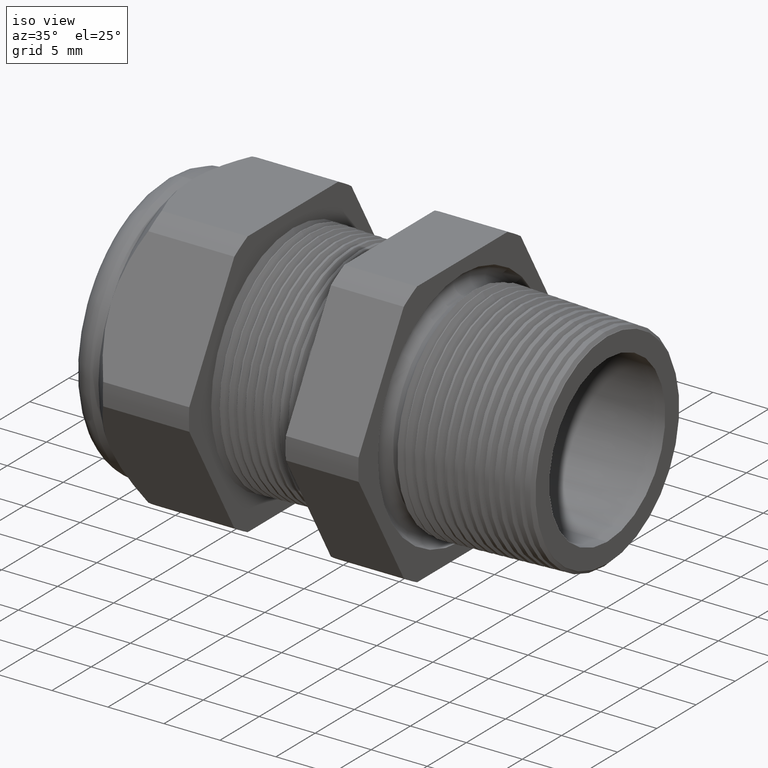
[diagram: clean part render]
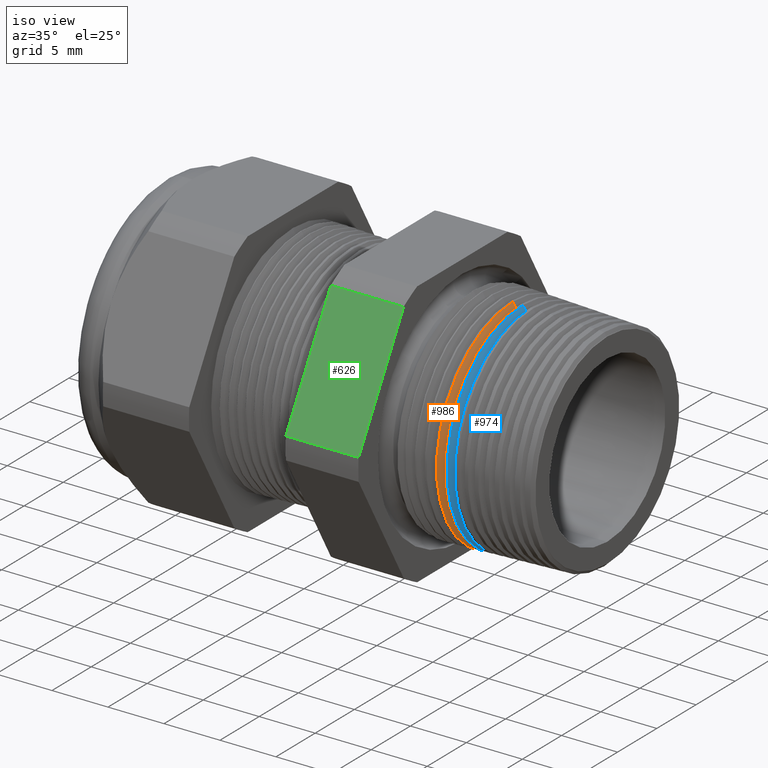
[diagram: same view with three faces highlighted in distinct colors, each labeled with its STEP entity id]
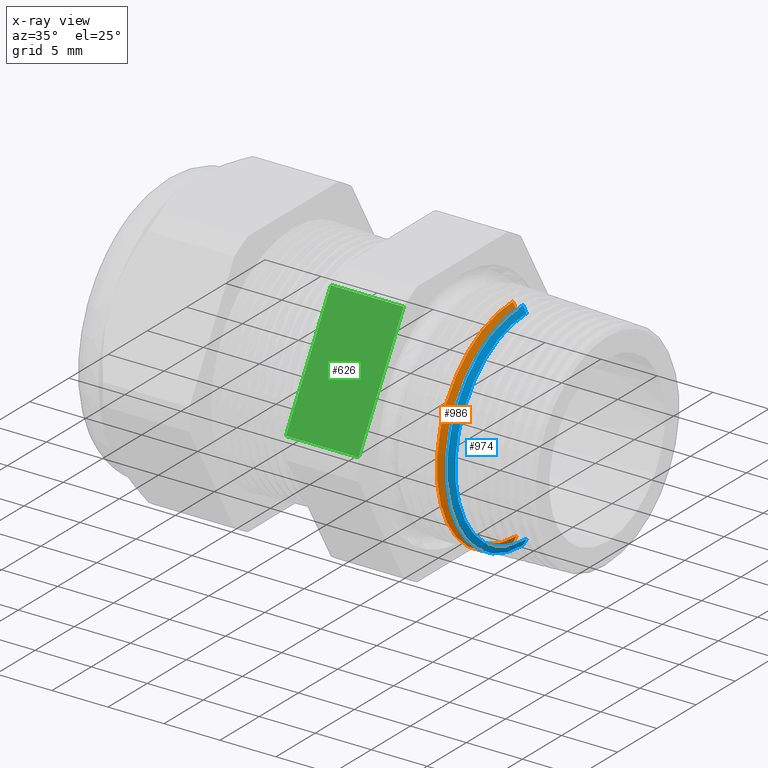
[diagram: x-ray of the same camera — body ghosted, the three highlighted faces saturated]
A machine part, iso view with three faces highlighted in distinct colors.
The next image is the same camera in x-ray (body ghosted, the three faces saturated) — at least one of them is partly hidden behind the body in this view.
Their STEP definitions:

[orange] entity #986 — the highlighted conical surface has half-angle 62 deg.
#986 = ADVANCED_FACE ( 'NONE', ( #3360 ), #3355, .T. ) ;
#987 = EDGE_LOOP ( 'NONE', ( #988, #989, #991, #992 ) ) ;
#988 = ORIENTED_EDGE ( 'NONE', *, *, #1150, .F. ) ;
#989 = ORIENTED_EDGE ( 'NONE', *, *, #990, .F. ) ;
#990 = EDGE_CURVE ( 'NONE', #1139, #1138, #3416, .T. ) ;
#991 = ORIENTED_EDGE ( 'NONE', *, *, #1126, .T. ) ;
#992 = ORIENTED_EDGE ( 'NONE', *, *, #5461, .T. ) ;
#1126 = EDGE_CURVE ( 'NONE', #1139, #1134, #3557, .T. ) ;
#1134 = VERTEX_POINT ( 'NONE', #3596 ) ;
#1138 = VERTEX_POINT ( 'NONE', #3595 ) ;
#1139 = VERTEX_POINT ( 'NONE', #3594 ) ;
#1150 = EDGE_CURVE ( 'NONE', #1138, #1151, #3636, .T. ) ;
#1151 = VERTEX_POINT ( 'NONE', #3632 ) ;
#3351 = DIRECTION ( 'NONE',  ( 0.0000000000000000000, 0.0000000000000000000, 1.000000000000000000 ) ) ;
#3352 = DIRECTION ( 'NONE',  ( -1.000000000000000000, 0.0000000000000000000, 0.0000000000000000000 ) ) ;
#3353 = CARTESIAN_POINT ( 'NONE',  ( -0.1349999999999999500, 0.0000000000000000000, 0.0000000000000000000 ) ) ;
#3354 = AXIS2_PLACEMENT_3D ( 'NONE', #3353, #3352, #3351 ) ;
#3355 = CONICAL_SURFACE ( 'NONE', #3354, 0.3892070189845242000, 1.082104136236471400 ) ;
#3360 = FACE_OUTER_BOUND ( 'NONE', #987, .T. ) ;
#3412 = DIRECTION ( 'NONE',  ( 0.0000000000000000000, 0.0000000000000000000, -1.000000000000000000 ) ) ;
#3413 = DIRECTION ( 'NONE',  ( 1.000000000000000000, 0.0000000000000000000, 0.0000000000000000000 ) ) ;
#3414 = CARTESIAN_POINT ( 'NONE',  ( -0.1187370280109210400, 0.0000000000000000000, 0.0000000000000000000 ) ) ;
#3415 = AXIS2_PLACEMENT_3D ( 'NONE', #3414, #3413, #3412 ) ;
#3416 = CIRCLE ( 'NONE', #3415, 0.3586208171594783600 ) ;
#3554 = DIRECTION ( 'NONE',  ( -0.4694715627859021900, 0.0000000000000000000, 0.8829475928589208800 ) ) ;
#3555 = VECTOR ( 'NONE', #3554, 39.37007874015748100 ) ;
#3556 = CARTESIAN_POINT ( 'NONE',  ( -0.1349999999999999500, 0.0000000000000000000, 0.3892070189845242000 ) ) ;
#3557 = LINE ( 'NONE', #3556, #3555 ) ;
#3594 = CARTESIAN_POINT ( 'NONE',  ( -0.1187370280109210400, 0.0000000000000000000, 0.3586208171594783600 ) ) ;
#3595 = CARTESIAN_POINT ( 'NONE',  ( -0.1187370280109210400, 4.540996975073094300E-017, -0.3586208171594783600 ) ) ;
#3596 = CARTESIAN_POINT ( 'NONE',  ( -0.1316891776990506100, 0.0000000000000000000, 0.3829802678610701400 ) ) ;
#3632 = CARTESIAN_POINT ( 'NONE',  ( -0.1316891776990506100, 4.691584091205684800E-017, -0.3829802678610701400 ) ) ;
#3633 = DIRECTION ( 'NONE',  ( -0.4694715627859021900, 1.081298943409537900E-016, -0.8829475928589208800 ) ) ;
#3634 = VECTOR ( 'NONE', #3633, 39.37007874015748100 ) ;
#3635 = CARTESIAN_POINT ( 'NONE',  ( -0.1349999999999999500, 4.766411300050807300E-017, -0.3892070189845242000 ) ) ;
#3636 = LINE ( 'NONE', #3635, #3634 ) ;
#4946 = DIRECTION ( 'NONE',  ( 0.0000000000000000000, 0.0000000000000000000, 1.000000000000000000 ) ) ;
#4947 = DIRECTION ( 'NONE',  ( 1.000000000000000000, 0.0000000000000000000, 0.0000000000000000000 ) ) ;
#4948 = CARTESIAN_POINT ( 'NONE',  ( -0.1316891776990506100, 0.0000000000000000000, 0.0000000000000000000 ) ) ;
#4949 = AXIS2_PLACEMENT_3D ( 'NONE', #4948, #4947, #4946 ) ;
#4950 = CIRCLE ( 'NONE', #4949, 0.3829802678610701400 ) ;
#5461 = EDGE_CURVE ( 'NONE', #1134, #1151, #4950, .T. ) ;

[blue] entity #974 — the highlighted conical surface has half-angle 62 deg.
#974 = ADVANCED_FACE ( 'NONE', ( #3377 ), #3372, .T. ) ;
#975 = EDGE_LOOP ( 'NONE', ( #976, #977, #979, #980 ) ) ;
#976 = ORIENTED_EDGE ( 'NONE', *, *, #1140, .F. ) ;
#977 = ORIENTED_EDGE ( 'NONE', *, *, #978, .F. ) ;
#978 = EDGE_CURVE ( 'NONE', #1291, #1290, #3366, .T. ) ;
#979 = ORIENTED_EDGE ( 'NONE', *, *, #1152, .T. ) ;
#980 = ORIENTED_EDGE ( 'NONE', *, *, #5466, .T. ) ;
#1128 = VERTEX_POINT ( 'NONE', #3547 ) ;
#1140 = EDGE_CURVE ( 'NONE', #1290, #1144, #3593, .T. ) ;
#1144 = VERTEX_POINT ( 'NONE', #3578 ) ;
#1152 = EDGE_CURVE ( 'NONE', #1291, #1128, #3631, .T. ) ;
#1290 = VERTEX_POINT ( 'NONE', #3913 ) ;
#1291 = VERTEX_POINT ( 'NONE', #3912 ) ;
#3363 = DIRECTION ( 'NONE',  ( 0.0000000000000000000, 0.0000000000000000000, -1.000000000000000000 ) ) ;
#3364 = DIRECTION ( 'NONE',  ( 1.000000000000000000, 0.0000000000000000000, 0.0000000000000000000 ) ) ;
#3365 = AXIS2_PLACEMENT_3D ( 'NONE', #3371, #3364, #3363 ) ;
#3366 = CIRCLE ( 'NONE', #3365, 0.3586208171594783600 ) ;
#3367 = DIRECTION ( 'NONE',  ( 0.0000000000000000000, 0.0000000000000000000, 1.000000000000000000 ) ) ;
#3368 = DIRECTION ( 'NONE',  ( -1.000000000000000000, 0.0000000000000000000, 0.0000000000000000000 ) ) ;
#3369 = CARTESIAN_POINT ( 'NONE',  ( -0.09999999999999996400, 0.0000000000000000000, 0.0000000000000000000 ) ) ;
#3370 = AXIS2_PLACEMENT_3D ( 'NONE', #3369, #3368, #3367 ) ;
#3371 = CARTESIAN_POINT ( 'NONE',  ( -0.08373702801092103300, 0.0000000000000000000, 0.0000000000000000000 ) ) ;
#3372 = CONICAL_SURFACE ( 'NONE', #3370, 0.3892070189845242000, 1.082104136236471400 ) ;
#3377 = FACE_OUTER_BOUND ( 'NONE', #975, .T. ) ;
#3547 = CARTESIAN_POINT ( 'NONE',  ( -0.09602701323886074500, 0.0000000000000000000, 0.3817349176363793500 ) ) ;
#3578 = CARTESIAN_POINT ( 'NONE',  ( -0.09602701323886074500, 4.676634358804842700E-017, -0.3817349176363793500 ) ) ;
#3590 = DIRECTION ( 'NONE',  ( -0.4694715627859021900, 1.081298943409537900E-016, -0.8829475928589208800 ) ) ;
#3591 = VECTOR ( 'NONE', #3590, 39.37007874015748100 ) ;
#3592 = CARTESIAN_POINT ( 'NONE',  ( -0.09999999999999996400, 4.766411300050807300E-017, -0.3892070189845242000 ) ) ;
#3593 = LINE ( 'NONE', #3592, #3591 ) ;
#3628 = DIRECTION ( 'NONE',  ( -0.4694715627859021900, 0.0000000000000000000, 0.8829475928589208800 ) ) ;
#3629 = VECTOR ( 'NONE', #3628, 39.37007874015748100 ) ;
#3630 = CARTESIAN_POINT ( 'NONE',  ( -0.09999999999999996400, 0.0000000000000000000, 0.3892070189845242000 ) ) ;
#3631 = LINE ( 'NONE', #3630, #3629 ) ;
#3912 = CARTESIAN_POINT ( 'NONE',  ( -0.08373702801092103300, 0.0000000000000000000, 0.3586208171594783600 ) ) ;
#3913 = CARTESIAN_POINT ( 'NONE',  ( -0.08373702801092103300, 4.533371404240669400E-017, -0.3586208171594783600 ) ) ;
#4935 = DIRECTION ( 'NONE',  ( 0.0000000000000000000, 0.0000000000000000000, 1.000000000000000000 ) ) ;
#4936 = DIRECTION ( 'NONE',  ( 1.000000000000000000, 0.0000000000000000000, 0.0000000000000000000 ) ) ;
#4937 = AXIS2_PLACEMENT_3D ( 'NONE', #4943, #4936, #4935 ) ;
#4938 = CIRCLE ( 'NONE', #4937, 0.3817349176363793500 ) ;
#4943 = CARTESIAN_POINT ( 'NONE',  ( -0.09602701323886074500, 0.0000000000000000000, 0.0000000000000000000 ) ) ;
#5466 = EDGE_CURVE ( 'NONE', #1128, #1144, #4938, .T. ) ;

[green] entity #626 — the highlighted planar face has unit normal (0, -0.866, 0.5).
#527 = VERTEX_POINT ( 'NONE', #2711 ) ;
#529 = EDGE_CURVE ( 'NONE', #527, #530, #2774, .T. ) ;
#530 = VERTEX_POINT ( 'NONE', #2770 ) ;
#626 = ADVANCED_FACE ( 'NONE', ( #2921 ), #2920, .T. ) ;
#627 = EDGE_LOOP ( 'NONE', ( #628, #629, #630, #633 ) ) ;
#628 = ORIENTED_EDGE ( 'NONE', *, *, #648, .F. ) ;
#629 = ORIENTED_EDGE ( 'NONE', *, *, #529, .F. ) ;
#630 = ORIENTED_EDGE ( 'NONE', *, *, #631, .T. ) ;
#631 = EDGE_CURVE ( 'NONE', #527, #632, #2915, .T. ) ;
#632 = VERTEX_POINT ( 'NONE', #2911 ) ;
#633 = ORIENTED_EDGE ( 'NONE', *, *, #634, .F. ) ;
#634 = EDGE_CURVE ( 'NONE', #649, #632, #2910, .T. ) ;
#648 = EDGE_CURVE ( 'NONE', #530, #649, #2956, .T. ) ;
#649 = VERTEX_POINT ( 'NONE', #2948 ) ;
#2711 = CARTESIAN_POINT ( 'NONE',  ( -0.3100000000000000000, -0.2938165587564945900, 0.4310947921287050500 ) ) ;
#2770 = CARTESIAN_POINT ( 'NONE',  ( -0.3100000000000000000, -0.5202473208008777700, 0.03890520787129464500 ) ) ;
#2771 = DIRECTION ( 'NONE',  ( 0.0000000000000000000, -0.4999999999999998300, -0.8660254037844388200 ) ) ;
#2772 = VECTOR ( 'NONE', #2771, 39.37007874015748100 ) ;
#2773 = CARTESIAN_POINT ( 'NONE',  ( -0.3100000000000000000, -0.1720319397786862800, 0.6420319397786858900 ) ) ;
#2774 = LINE ( 'NONE', #2773, #2772 ) ;
#2907 = DIRECTION ( 'NONE',  ( 0.0000000000000000000, 0.4999999999999998300, 0.8660254037844388200 ) ) ;
#2908 = VECTOR ( 'NONE', #2907, 39.37007874015748100 ) ;
#2909 = CARTESIAN_POINT ( 'NONE',  ( -0.5659055118110235500, -0.1720319397786862800, 0.6420319397786858900 ) ) ;
#2910 = LINE ( 'NONE', #2909, #2908 ) ;
#2911 = CARTESIAN_POINT ( 'NONE',  ( -0.5659055118110235500, -0.2938165587564945900, 0.4310947921287050500 ) ) ;
#2912 = DIRECTION ( 'NONE',  ( -1.000000000000000000, 0.0000000000000000000, 0.0000000000000000000 ) ) ;
#2913 = VECTOR ( 'NONE', #2912, 39.37007874015748100 ) ;
#2914 = CARTESIAN_POINT ( 'NONE',  ( 0.2000000000000000400, -0.2938165587564945900, 0.4310947921287050500 ) ) ;
#2915 = LINE ( 'NONE', #2914, #2913 ) ;
#2916 = DIRECTION ( 'NONE',  ( 0.0000000000000000000, -0.4999999999999998300, -0.8660254037844388200 ) ) ;
#2917 = DIRECTION ( 'NONE',  ( 0.0000000000000000000, -0.8660254037844388200, 0.4999999999999998300 ) ) ;
#2918 = CARTESIAN_POINT ( 'NONE',  ( 0.2000000000000000400, -0.5202473208008777700, 0.03890520787129467300 ) ) ;
#2919 = AXIS2_PLACEMENT_3D ( 'NONE', #2918, #2917, #2916 ) ;
#2920 = PLANE ( 'NONE',  #2919 ) ;
#2921 = FACE_OUTER_BOUND ( 'NONE', #627, .T. ) ;
#2948 = CARTESIAN_POINT ( 'NONE',  ( -0.5659055118110235500, -0.5202473208008777700, 0.03890520787129464500 ) ) ;
#2949 = DIRECTION ( 'NONE',  ( -1.000000000000000000, 0.0000000000000000000, 0.0000000000000000000 ) ) ;
#2950 = VECTOR ( 'NONE', #2949, 39.37007874015748100 ) ;
#2951 = CARTESIAN_POINT ( 'NONE',  ( 0.2000000000000000400, -0.5202473208008777700, 0.03890520787129464500 ) ) ;
#2956 = LINE ( 'NONE', #2951, #2950 ) ;